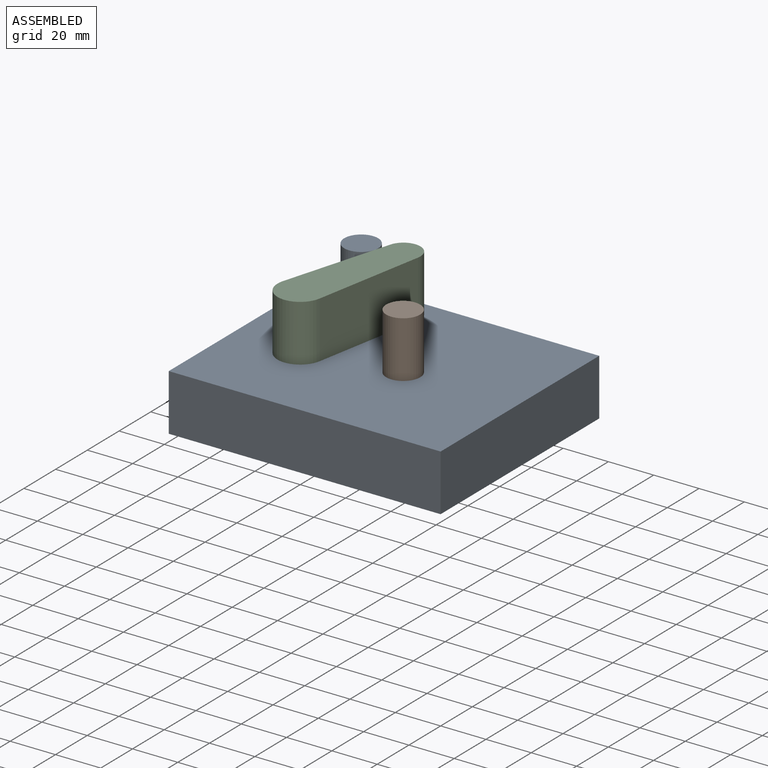
[diagram: assembled view]
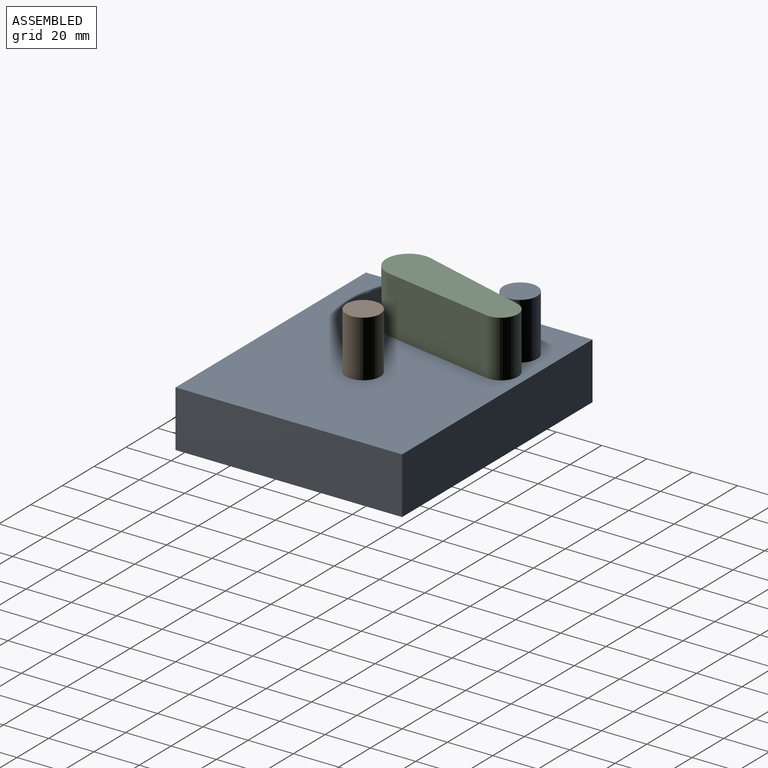
[diagram: assembled view, second angle]
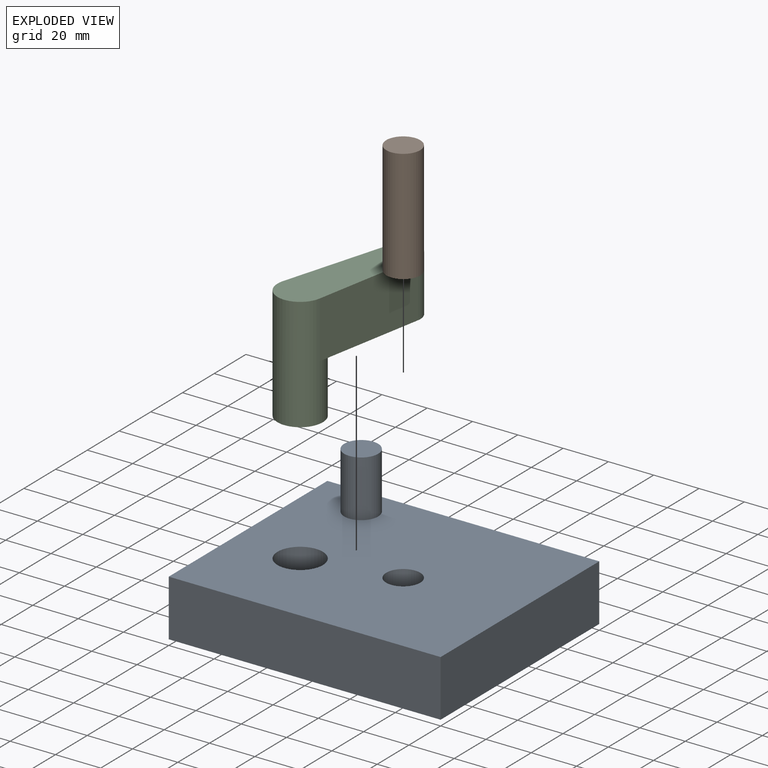
[diagram: exploded view]
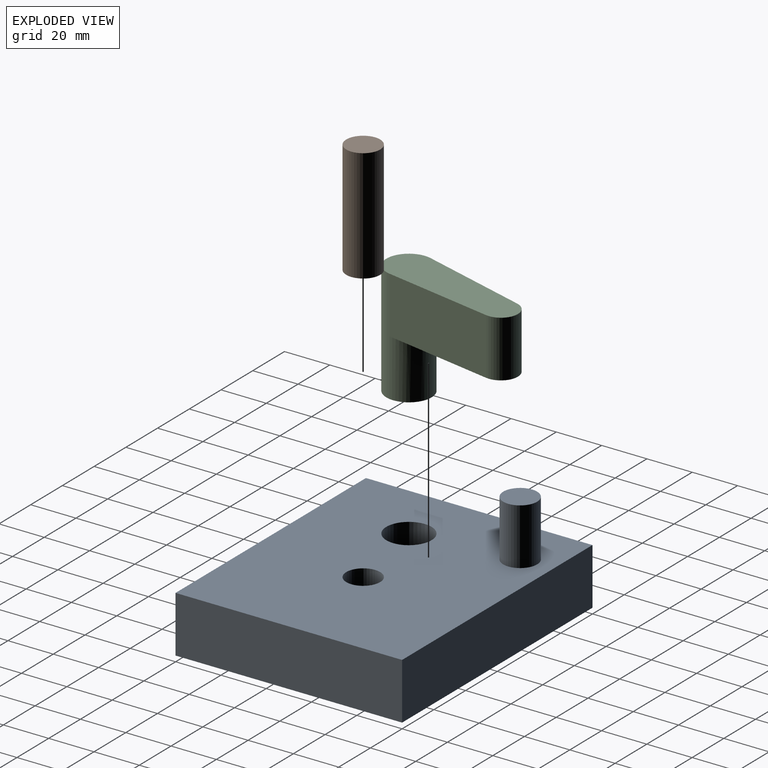
[diagram: exploded view, second angle]
ASSEMBLY  parts=3 mates=2
PART A: 10 faces, bbox 120x100x50 mm
  f0: plane 100x25mm, normal (-1,0,0), area 2500mm2, adj f1,f4,f5,f6
  f1: plane 120x25mm, normal (0,-1,0), area 3000mm2, adj f0,f2,f5,f6
  f2: plane 100x25mm, normal (1,0,0), area 2500mm2, adj f1,f4,f5,f6
  f3: cylinder r=10mm len=25mm, axis (0,0,-1), area 1570.8mm2, adj f5,f6
  f4: plane 120x25mm, normal (0,1,0), area 3000mm2, adj f0,f2,f5,f6
  f5: plane 120x100mm, normal (0,0,1), area 11332.4mm2, adj f0,f1,f2,f3,f4,f7,f8
  f6: plane 120x100mm, normal (0,0,-1), area 11509.1mm2, adj f0,f1,f2,f3,f4,f7
  f7: cylinder r=7.5mm len=25mm, axis (0,0,-1), area 1178.1mm2, adj f5,f6
  f8: cylinder r=7.5mm len=25mm, axis (0,0,-1), area 1178.1mm2, adj f5,f9
  f9: plane 15x15mm, normal (0,0,1), area 176.7mm2, adj f8
PART B: 3 faces, bbox 15x15x50 mm
  f0: plane 15x15mm, normal (0,0,1), area 176.7mm2, adj f1
  f1: cylinder r=7.5mm len=50mm, axis (0,0,-1), area 2356.2mm2, adj f0,f2
  f2: plane 15x15mm, normal (0,0,-1), area 176.7mm2, adj f1
PART C: 7 faces, bbox 67.5x20x50 mm
  f0: plane 20x20mm, normal (0,0,-1), area 314.2mm2, adj f1
  f1: cylinder r=10mm len=50mm, axis (0,0,-1), area 2381.2mm2, adj f0,f2,f4,f5,f6
  f2: plane 49.88x25mm, normal (0.05,-1,0), area 1248.4mm2, adj f1,f3,f5,f6
  f3: cylinder r=7.5mm len=25mm, axis (0,0,-1), area 570.3mm2, adj f2,f4,f5,f6
  f4: plane 49.88x25mm, normal (0.05,1,0), area 1248.4mm2, adj f1,f3,f5,f6
  f5: plane 67.5x20mm, normal (0,0,1), area 1121.5mm2, adj f1,f2,f3,f4
  f6: plane 57x19.98mm, normal (0,0,-1), area 807.4mm2, adj f1,f2,f3,f4
PLACE A at identity fixed
PLACE B at identity
PLACE C rot(axis=(0,0,1),76.7deg) t=(62.03,1.6,0)mm
MATE fastened B.f1 <-> A.f7  axis (0,0,-1) through (70,47.83,0)mm
MATE revolute C.f1 <-> A.f3  axis (0,0,-1) through (30,40,25)mm
